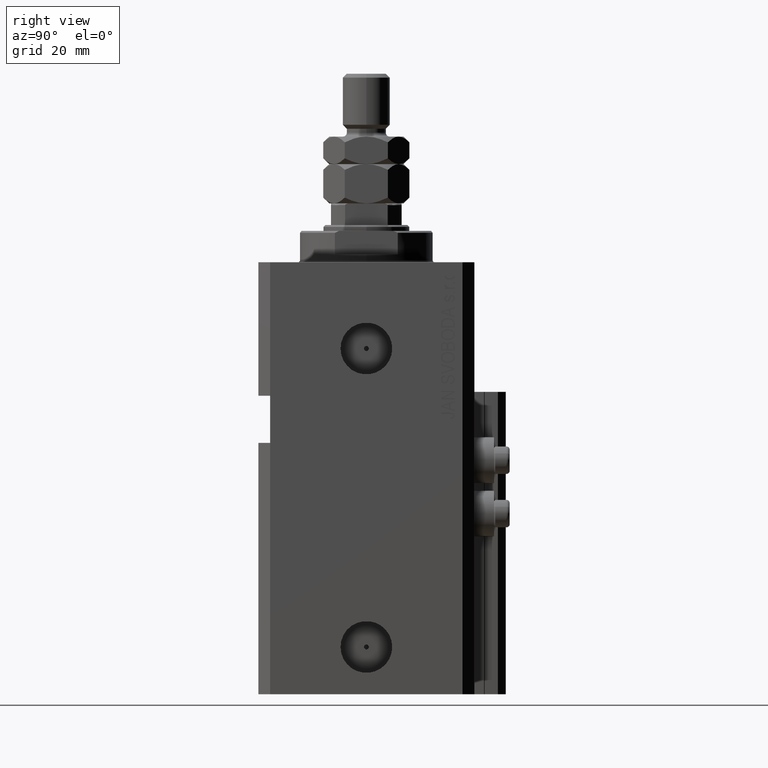
[diagram: clean part render]
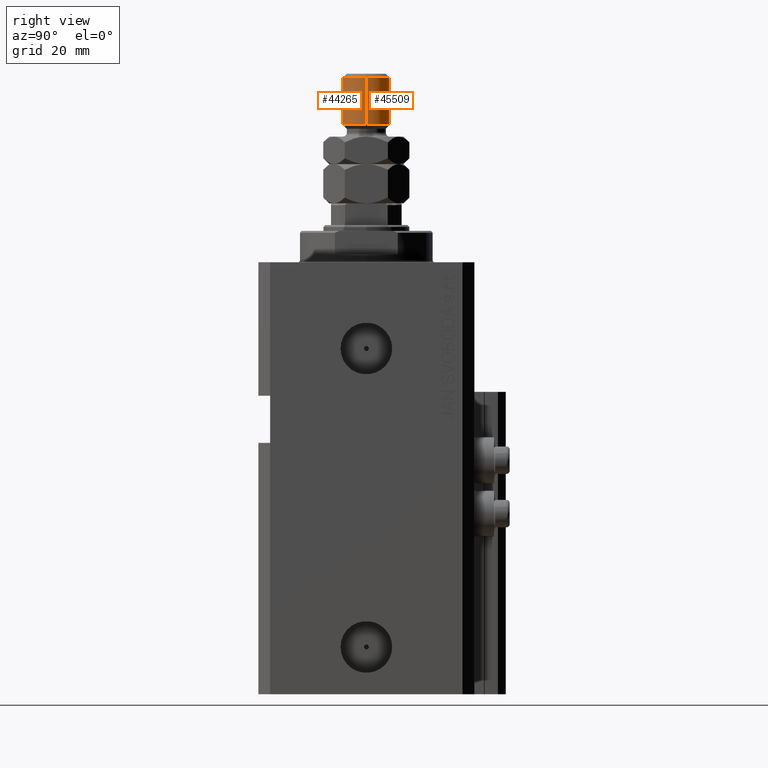
[diagram: same view with one multi-face feature highlighted, each face labeled with its STEP entity id]
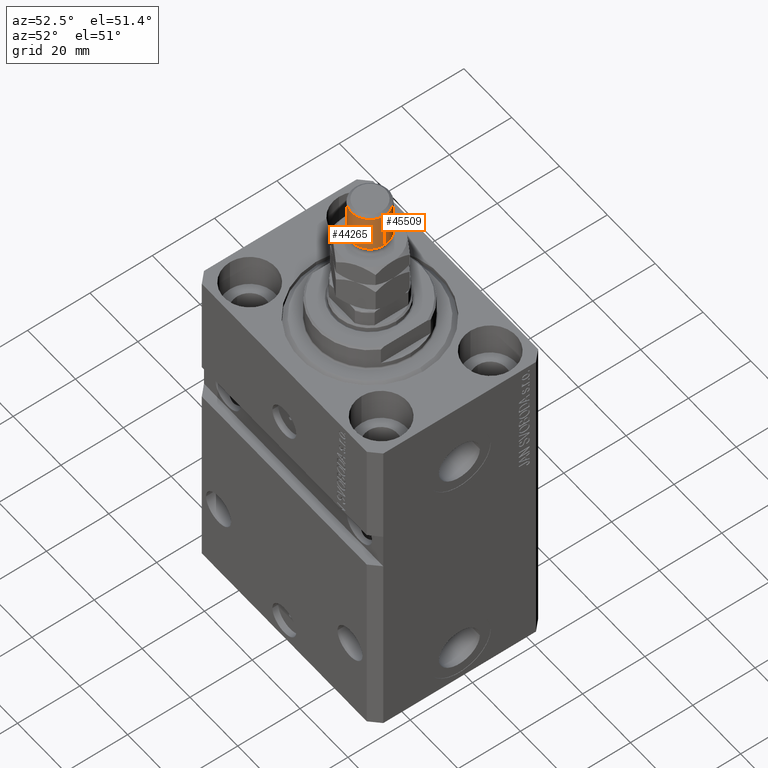
[diagram: same view with one multi-face feature highlighted, each face labeled with its STEP entity id]
A machine part, right view. The highlighted faces form ONE feature: a constant-radius fillet chain: 2 tangent blend faces with common blend radius 6 mm. The faces share edges in the B-rep.
A second angle (auxiliary view) of the same feature is appended — it is thin or edge-on in the first view.
Their STEP definitions:
[1] entity #44265 (Cylinder):
#1065 = CARTESIAN_POINT ( 'NONE',  ( -6.000000000000000888, 0.000000000000000000, 33.00000000000000000 ) ) ;
#1950 = CIRCLE ( 'NONE', #18527, 6.000000000000000888 ) ;
#3831 = EDGE_CURVE ( 'NONE', #21709, #12052, #1950, .T. ) ;
#8031 = DIRECTION ( 'NONE',  ( -0.000000000000000000, -0.000000000000000000, -1.000000000000000000 ) ) ;
#11954 = DIRECTION ( 'NONE',  ( -0.000000000000000000, -0.000000000000000000, 1.000000000000000000 ) ) ;
#12052 = VERTEX_POINT ( 'NONE', #21124 ) ;
#12495 = ORIENTED_EDGE ( 'NONE', *, *, #3831, .T. ) ;
#12540 = EDGE_CURVE ( 'NONE', #17536, #39038, #47979, .T. ) ;
#14090 = AXIS2_PLACEMENT_3D ( 'NONE', #25838, #25099, #40965 ) ;
#16557 = DIRECTION ( 'NONE',  ( 0.000000000000000000, 0.000000000000000000, -1.000000000000000000 ) ) ;
#17536 = VERTEX_POINT ( 'NONE', #28031 ) ;
#18527 = AXIS2_PLACEMENT_3D ( 'NONE', #32132, #16557, #31150 ) ;
#18740 = AXIS2_PLACEMENT_3D ( 'NONE', #26793, #11954, #27027 ) ;
#21124 = CARTESIAN_POINT ( 'NONE',  ( -6.000000000000000888, 0.000000000000000000, 32.00000000000000000 ) ) ;
#21709 = VERTEX_POINT ( 'NONE', #30865 ) ;
#21983 = EDGE_CURVE ( 'NONE', #12052, #17536, #23602, .T. ) ;
#22149 = CYLINDRICAL_SURFACE ( 'NONE', #14090, 6.000000000000000888 ) ;
#23252 = VECTOR ( 'NONE', #27178, 1000.000000000000000 ) ;
#23602 = LINE ( 'NONE', #1065, #37520 ) ;
#23743 = CARTESIAN_POINT ( 'NONE',  ( 6.000000000000000888, 7.347880794884120722E-16, 20.00000000000000711 ) ) ;
#24850 = EDGE_CURVE ( 'NONE', #21709, #39038, #31640, .T. ) ;
#25099 = DIRECTION ( 'NONE',  ( -0.000000000000000000, -0.000000000000000000, -1.000000000000000000 ) ) ;
#25838 = CARTESIAN_POINT ( 'NONE',  ( 0.000000000000000000, 0.000000000000000000, 33.00000000000000000 ) ) ;
#26793 = CARTESIAN_POINT ( 'NONE',  ( 0.000000000000000000, 0.000000000000000000, 20.00000000000000711 ) ) ;
#27027 = DIRECTION ( 'NONE',  ( 1.000000000000000000, 0.000000000000000000, 0.000000000000000000 ) ) ;
#27178 = DIRECTION ( 'NONE',  ( -0.000000000000000000, -0.000000000000000000, -1.000000000000000000 ) ) ;
#27676 = CARTESIAN_POINT ( 'NONE',  ( 6.000000000000000888, 7.347880794884120722E-16, 33.00000000000000000 ) ) ;
#28031 = CARTESIAN_POINT ( 'NONE',  ( -6.000000000000000888, 0.000000000000000000, 20.00000000000000711 ) ) ;
#30865 = CARTESIAN_POINT ( 'NONE',  ( 6.000000000000000888, 7.347880794884120722E-16, 32.00000000000000000 ) ) ;
#31150 = DIRECTION ( 'NONE',  ( 1.000000000000000000, 0.000000000000000000, 0.000000000000000000 ) ) ;
#31640 = LINE ( 'NONE', #27676, #23252 ) ;
#32132 = CARTESIAN_POINT ( 'NONE',  ( 0.000000000000000000, 0.000000000000000000, 32.00000000000000000 ) ) ;
#33042 = ORIENTED_EDGE ( 'NONE', *, *, #12540, .T. ) ;
#37520 = VECTOR ( 'NONE', #8031, 1000.000000000000000 ) ;
#39038 = VERTEX_POINT ( 'NONE', #23743 ) ;
#40965 = DIRECTION ( 'NONE',  ( -1.000000000000000000, 0.000000000000000000, 0.000000000000000000 ) ) ;
#41479 = ORIENTED_EDGE ( 'NONE', *, *, #24850, .F. ) ;
#43826 = ORIENTED_EDGE ( 'NONE', *, *, #21983, .T. ) ;
#44044 = EDGE_LOOP ( 'NONE', ( #41479, #12495, #43826, #33042 ) ) ;
#44265 = ADVANCED_FACE ( 'NONE', ( #48140 ), #22149, .T. ) ;
#47979 = CIRCLE ( 'NONE', #18740, 6.000000000000000888 ) ;
#48140 = FACE_OUTER_BOUND ( 'NONE', #44044, .T. ) ;
[2] entity #45509 (Cylinder):
#564 = DIRECTION ( 'NONE',  ( 0.000000000000000000, 0.000000000000000000, -1.000000000000000000 ) ) ;
#1065 = CARTESIAN_POINT ( 'NONE',  ( -6.000000000000000888, 0.000000000000000000, 33.00000000000000000 ) ) ;
#2824 = ORIENTED_EDGE ( 'NONE', *, *, #21399, .T. ) ;
#4023 = CARTESIAN_POINT ( 'NONE',  ( 0.000000000000000000, 0.000000000000000000, 33.00000000000000000 ) ) ;
#8031 = DIRECTION ( 'NONE',  ( -0.000000000000000000, -0.000000000000000000, -1.000000000000000000 ) ) ;
#8425 = EDGE_LOOP ( 'NONE', ( #32679, #19797, #2824, #26745 ) ) ;
#11394 = CIRCLE ( 'NONE', #24022, 6.000000000000000888 ) ;
#12052 = VERTEX_POINT ( 'NONE', #21124 ) ;
#15680 = DIRECTION ( 'NONE',  ( 1.000000000000000000, 0.000000000000000000, 0.000000000000000000 ) ) ;
#15836 = EDGE_CURVE ( 'NONE', #12052, #21709, #33344, .T. ) ;
#16555 = DIRECTION ( 'NONE',  ( 1.000000000000000000, 0.000000000000000000, 0.000000000000000000 ) ) ;
#17536 = VERTEX_POINT ( 'NONE', #28031 ) ;
#18875 = CYLINDRICAL_SURFACE ( 'NONE', #46523, 6.000000000000000888 ) ;
#19593 = DIRECTION ( 'NONE',  ( -0.000000000000000000, -0.000000000000000000, -1.000000000000000000 ) ) ;
#19797 = ORIENTED_EDGE ( 'NONE', *, *, #24850, .T. ) ;
#21124 = CARTESIAN_POINT ( 'NONE',  ( -6.000000000000000888, 0.000000000000000000, 32.00000000000000000 ) ) ;
#21399 = EDGE_CURVE ( 'NONE', #39038, #17536, #11394, .T. ) ;
#21709 = VERTEX_POINT ( 'NONE', #30865 ) ;
#21983 = EDGE_CURVE ( 'NONE', #12052, #17536, #23602, .T. ) ;
#23252 = VECTOR ( 'NONE', #27178, 1000.000000000000000 ) ;
#23602 = LINE ( 'NONE', #1065, #37520 ) ;
#23743 = CARTESIAN_POINT ( 'NONE',  ( 6.000000000000000888, 7.347880794884120722E-16, 20.00000000000000711 ) ) ;
#24022 = AXIS2_PLACEMENT_3D ( 'NONE', #31393, #34872, #16555 ) ;
#24850 = EDGE_CURVE ( 'NONE', #21709, #39038, #31640, .T. ) ;
#26745 = ORIENTED_EDGE ( 'NONE', *, *, #21983, .F. ) ;
#27040 = CARTESIAN_POINT ( 'NONE',  ( 0.000000000000000000, 0.000000000000000000, 32.00000000000000000 ) ) ;
#27178 = DIRECTION ( 'NONE',  ( -0.000000000000000000, -0.000000000000000000, -1.000000000000000000 ) ) ;
#27676 = CARTESIAN_POINT ( 'NONE',  ( 6.000000000000000888, 7.347880794884120722E-16, 33.00000000000000000 ) ) ;
#28031 = CARTESIAN_POINT ( 'NONE',  ( -6.000000000000000888, 0.000000000000000000, 20.00000000000000711 ) ) ;
#30010 = DIRECTION ( 'NONE',  ( -1.000000000000000000, 0.000000000000000000, 0.000000000000000000 ) ) ;
#30865 = CARTESIAN_POINT ( 'NONE',  ( 6.000000000000000888, 7.347880794884120722E-16, 32.00000000000000000 ) ) ;
#31393 = CARTESIAN_POINT ( 'NONE',  ( 0.000000000000000000, 0.000000000000000000, 20.00000000000000711 ) ) ;
#31640 = LINE ( 'NONE', #27676, #23252 ) ;
#32679 = ORIENTED_EDGE ( 'NONE', *, *, #15836, .T. ) ;
#33344 = CIRCLE ( 'NONE', #42044, 6.000000000000000888 ) ;
#34872 = DIRECTION ( 'NONE',  ( -0.000000000000000000, -0.000000000000000000, 1.000000000000000000 ) ) ;
#37520 = VECTOR ( 'NONE', #8031, 1000.000000000000000 ) ;
#39038 = VERTEX_POINT ( 'NONE', #23743 ) ;
#42044 = AXIS2_PLACEMENT_3D ( 'NONE', #27040, #564, #15680 ) ;
#45509 = ADVANCED_FACE ( 'NONE', ( #45852 ), #18875, .T. ) ;
#45852 = FACE_OUTER_BOUND ( 'NONE', #8425, .T. ) ;
#46523 = AXIS2_PLACEMENT_3D ( 'NONE', #4023, #19593, #30010 ) ;